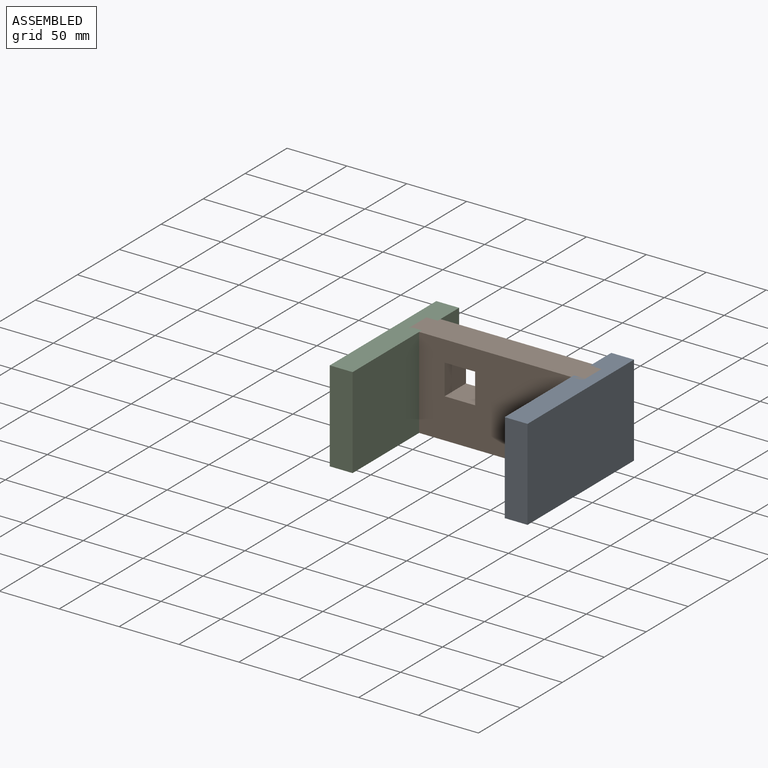
[diagram: assembled view]
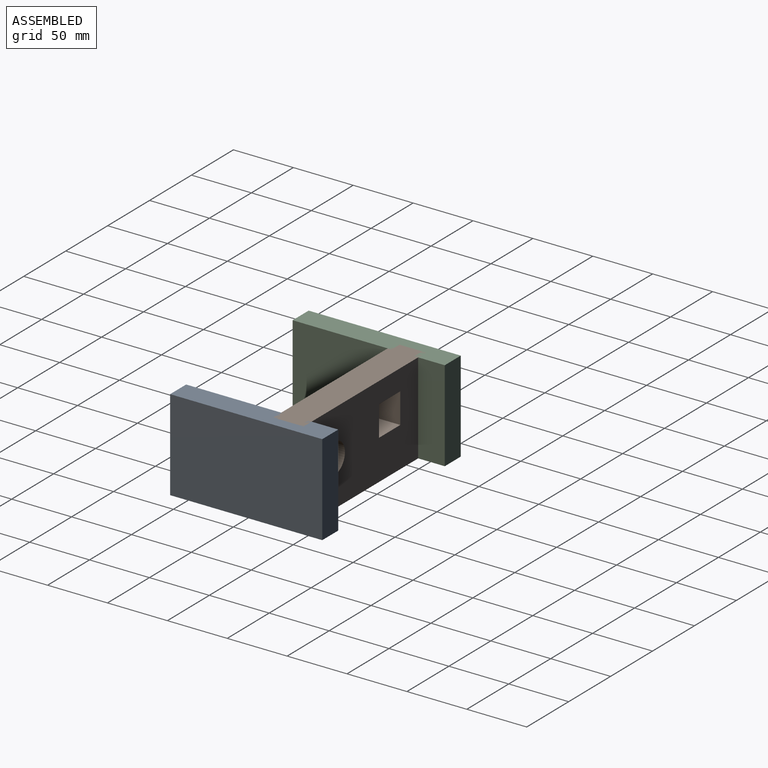
[diagram: assembled view, second angle]
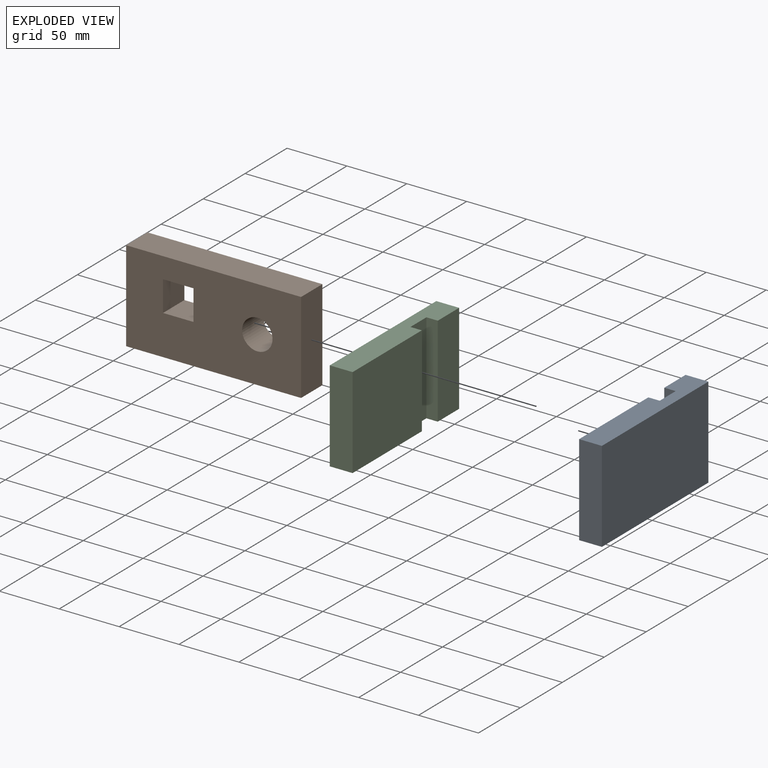
[diagram: exploded view]
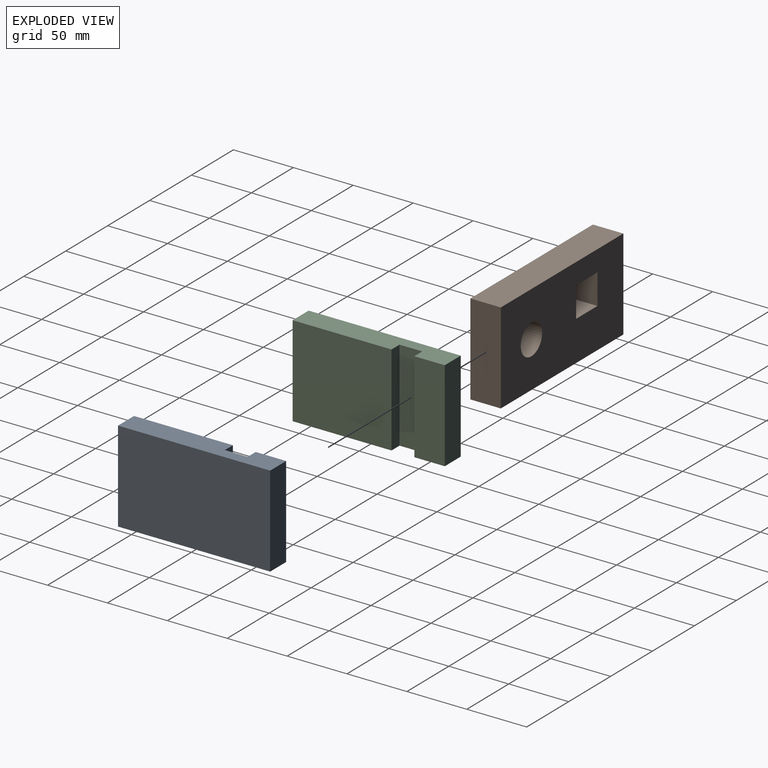
[diagram: exploded view, second angle]
ASSEMBLY  parts=3 mates=3
PART A: 10 faces, bbox 21.5x76.2x127.3 mm
  f0: plane 76.2x9.52mm, normal (-0.02,0,1), area 725.8mm2, adj f1,f7,f8,f9
  f1: plane 82.54x76.2mm, normal (-1,0,-0.02), area 6290.3mm2, adj f0,f2,f8,f9
  f2: plane 76.2x19.05mm, normal (0.02,0,-1), area 1451.6mm2, adj f1,f3,f8,f9
  f3: plane 126.98x76.2mm, normal (1,0,0.02), area 9677.4mm2, adj f2,f4,f8,f9
  f4: plane 76.2x19.05mm, normal (-0.02,0,1), area 1451.6mm2, adj f3,f5,f8,f9
  f5: plane 76.2x25.4mm, normal (-1,0,-0.02), area 1935.5mm2, adj f4,f6,f8,f9
  f6: plane 76.2x9.52mm, normal (0.02,0,-1), area 725.8mm2, adj f5,f7,f8,f9
  f7: plane 76.2x19.05mm, normal (-1,0,-0.02), area 1451.6mm2, adj f0,f6,f8,f9
  f8: plane 127.34x21.47mm, normal (0,-1,0), area 2237.9mm2, adj f0,f1,f2,f3,f4,f5,f6,f7
  f9: plane 127.34x21.47mm, normal (0,1,0), area 2237.9mm2, adj f0,f1,f2,f3,f4,f5,f6,f7
PART B: 11 faces, bbox 146.1x25.4x76.2 mm
  f0: plane 25.4x25.4mm, normal (1,0,0), area 645.2mm2, adj f1,f8,f9,f10
  f1: plane 25.4x25.4mm, normal (0,0,-1), area 645.2mm2, adj f0,f2,f9,f10
  f2: plane 25.4x25.4mm, normal (-1,0,0), area 645.2mm2, adj f1,f8,f9,f10
  f3: plane 76.2x25.4mm, normal (1,0,0), area 1935.5mm2, adj f4,f6,f9,f10
  f4: plane 146.05x25.4mm, normal (0,0,1), area 3709.7mm2, adj f3,f5,f9,f10
  f5: plane 76.2x25.4mm, normal (-1,0,0), area 1935.5mm2, adj f4,f6,f9,f10
  f6: plane 146.05x25.4mm, normal (0,0,-1), area 3709.7mm2, adj f3,f5,f9,f10
  f7: cylinder r=12.7mm len=25.4mm, axis (0,1,0), area 2026.8mm2, adj f9,f10
  f8: plane 25.4x25.4mm, normal (0,0,1), area 645.2mm2, adj f0,f2,f9,f10
  f9: plane 146.05x76.2mm, normal (0,-1,0), area 9977.1mm2, adj f0,f1,f2,f3,f4,f5,f6,f7
  f10: plane 146.05x76.2mm, normal (0,1,0), area 9977.1mm2, adj f0,f1,f2,f3,f4,f5,f6,f7
PART C: same geometry as A
PLACE A rot(axis=(-1,0.01,-0.01),90deg) t=(-38.76,-36.91,9.26)mm
PLACE B t=(-21.07,-5.99,9.26)mm
PLACE C rot(axis=(0.01,-0.71,-0.71),179.2deg) t=(-149.44,-36.91,85.46)mm
MATE planar A.f7 <-> A.f3  axis (-1,0,0) through (-21.07,-18.69,47.36)mm
MATE planar A.f7 <-> B.f3  axis (-1,0,0) through (-21.07,-18.69,47.36)mm
MATE planar C.f7 <-> B.f5  axis (1,0,0) through (-167.12,-18.69,47.36)mm
